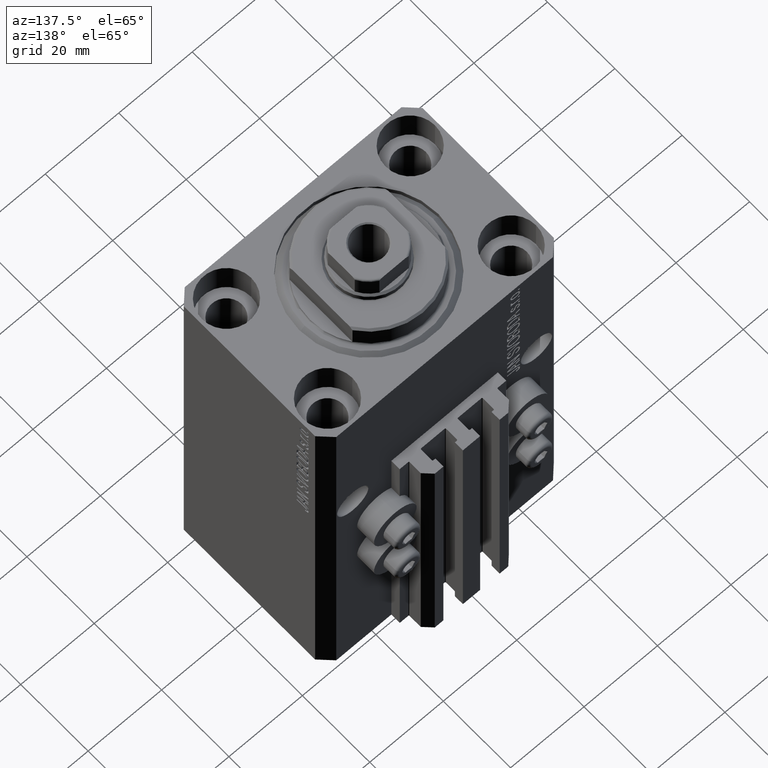
[diagram: clean part render]
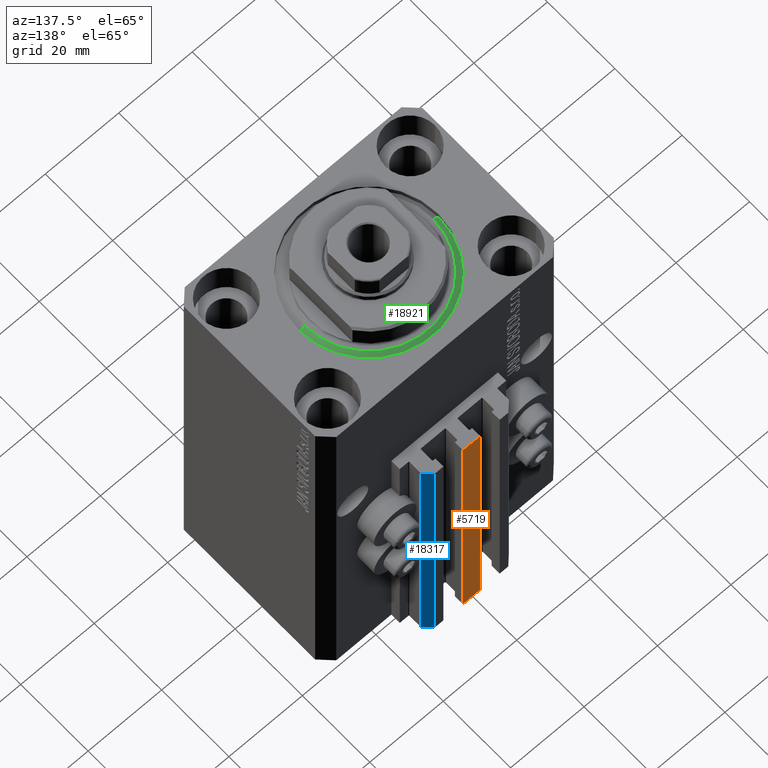
[diagram: same view with three faces highlighted in distinct colors, each labeled with its STEP entity id]
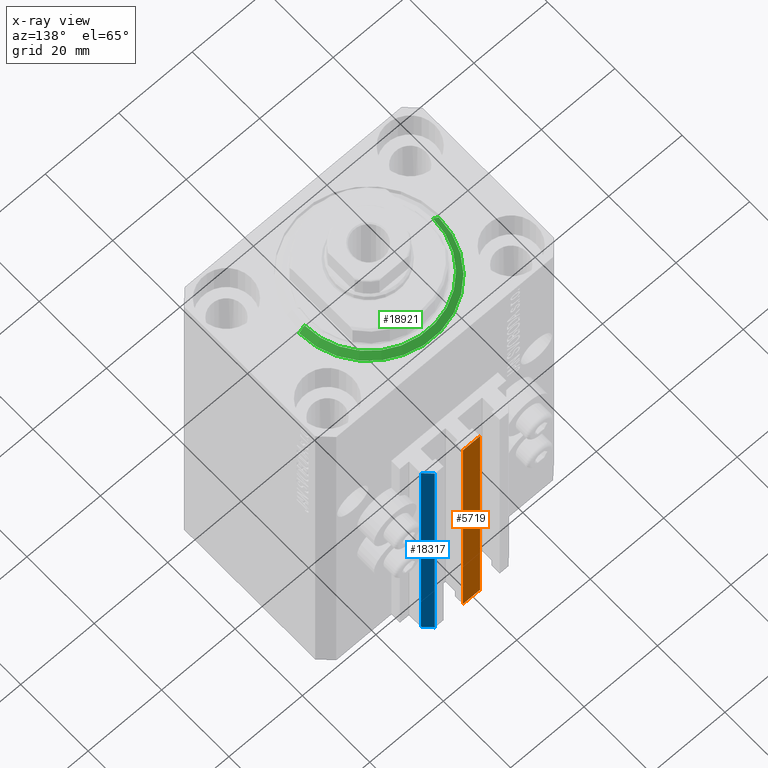
[diagram: x-ray of the same camera — body ghosted, the three highlighted faces saturated]
A machine part, auxiliary view with three faces highlighted in distinct colors.
The next image is the same camera in x-ray (body ghosted, the three faces saturated) — at least one of them is partly hidden behind the body in this view.
Their STEP definitions:

[orange] entity #5719 — the highlighted planar face has unit normal (0, -1, 0).
#109 = VERTEX_POINT ( 'NONE', #5108 ) ;
#119 = CARTESIAN_POINT ( 'NONE',  ( -2.350000000000003197, 30.49999999999949907, -33.00000000000000000 ) ) ;
#2055 = LINE ( 'NONE', #16613, #31984 ) ;
#2535 = VERTEX_POINT ( 'NONE', #16108 ) ;
#3369 = CARTESIAN_POINT ( 'NONE',  ( -2.350000000000003197, 30.49999999999949907, -106.0000000000000000 ) ) ;
#3571 = CARTESIAN_POINT ( 'NONE',  ( 2.349999999999999645, 30.49999999999949907, -106.0000000000000000 ) ) ;
#3645 = DIRECTION ( 'NONE',  ( 0.000000000000000000, -0.000000000000000000, -1.000000000000000000 ) ) ;
#5108 = CARTESIAN_POINT ( 'NONE',  ( 2.349999999999999645, 30.49999999999949907, -33.00000000000000000 ) ) ;
#5719 = ADVANCED_FACE ( 'NONE', ( #33229 ), #15085, .F. ) ;
#6614 = VECTOR ( 'NONE', #19065, 1000.000000000000000 ) ;
#6747 = ORIENTED_EDGE ( 'NONE', *, *, #46868, .F. ) ;
#10386 = AXIS2_PLACEMENT_3D ( 'NONE', #10804, #18205, #3645 ) ;
#10804 = CARTESIAN_POINT ( 'NONE',  ( -2.350000000000003197, 30.49999999999949907, -106.0000000000000000 ) ) ;
#12900 = ORIENTED_EDGE ( 'NONE', *, *, #16026, .F. ) ;
#13656 = LINE ( 'NONE', #3369, #22123 ) ;
#15085 = PLANE ( 'NONE',  #10386 ) ;
#16026 = EDGE_CURVE ( 'NONE', #32525, #2535, #2055, .T. ) ;
#16108 = CARTESIAN_POINT ( 'NONE',  ( 2.349999999999999645, 30.49999999999949907, -106.0000000000000000 ) ) ;
#16613 = CARTESIAN_POINT ( 'NONE',  ( -2.350000000000003197, 30.49999999999949907, -106.0000000000000000 ) ) ;
#17287 = VECTOR ( 'NONE', #39383, 1000.000000000000000 ) ;
#17935 = DIRECTION ( 'NONE',  ( 0.000000000000000000, 0.000000000000000000, 1.000000000000000000 ) ) ;
#18205 = DIRECTION ( 'NONE',  ( 0.000000000000000000, -1.000000000000000000, 0.000000000000000000 ) ) ;
#19065 = DIRECTION ( 'NONE',  ( 1.000000000000000000, 0.000000000000000000, 0.000000000000000000 ) ) ;
#19210 = EDGE_CURVE ( 'NONE', #32525, #20668, #13656, .T. ) ;
#19794 = CARTESIAN_POINT ( 'NONE',  ( -2.350000000000003197, 30.49999999999949907, -106.0000000000000000 ) ) ;
#20668 = VERTEX_POINT ( 'NONE', #119 ) ;
#21272 = ORIENTED_EDGE ( 'NONE', *, *, #46929, .T. ) ;
#22123 = VECTOR ( 'NONE', #17935, 1000.000000000000000 ) ;
#22657 = CARTESIAN_POINT ( 'NONE',  ( -2.350000000000003197, 30.49999999999949907, -33.00000000000000000 ) ) ;
#24420 = ORIENTED_EDGE ( 'NONE', *, *, #19210, .T. ) ;
#27828 = DIRECTION ( 'NONE',  ( 1.000000000000000000, 0.000000000000000000, 0.000000000000000000 ) ) ;
#30513 = LINE ( 'NONE', #22657, #6614 ) ;
#31984 = VECTOR ( 'NONE', #27828, 1000.000000000000000 ) ;
#32525 = VERTEX_POINT ( 'NONE', #19794 ) ;
#33229 = FACE_OUTER_BOUND ( 'NONE', #36332, .T. ) ;
#36332 = EDGE_LOOP ( 'NONE', ( #21272, #6747, #12900, #24420 ) ) ;
#36726 = LINE ( 'NONE', #3571, #17287 ) ;
#39383 = DIRECTION ( 'NONE',  ( 0.000000000000000000, 0.000000000000000000, 1.000000000000000000 ) ) ;
#46868 = EDGE_CURVE ( 'NONE', #2535, #109, #36726, .T. ) ;
#46929 = EDGE_CURVE ( 'NONE', #20668, #109, #30513, .T. ) ;

[blue] entity #18317 — the highlighted planar face has unit normal (0.7071, 0.7071, 0).
#937 = ORIENTED_EDGE ( 'NONE', *, *, #37518, .F. ) ;
#4008 = CARTESIAN_POINT ( 'NONE',  ( 12.00000000000000178, 28.49999999999950973, -106.0000000000000000 ) ) ;
#4242 = CARTESIAN_POINT ( 'NONE',  ( 12.00000000000000178, 28.49999999999950973, -33.00000000000000000 ) ) ;
#6245 = FACE_OUTER_BOUND ( 'NONE', #8613, .T. ) ;
#7391 = ORIENTED_EDGE ( 'NONE', *, *, #22787, .T. ) ;
#7748 = CARTESIAN_POINT ( 'NONE',  ( 9.999999999999994671, 30.49999999999949551, -33.00000000000000000 ) ) ;
#8053 = CARTESIAN_POINT ( 'NONE',  ( 12.00000000000000178, 28.49999999999950973, -106.0000000000000000 ) ) ;
#8613 = EDGE_LOOP ( 'NONE', ( #937, #9282, #24096, #7391 ) ) ;
#9001 = LINE ( 'NONE', #4242, #37697 ) ;
#9282 = ORIENTED_EDGE ( 'NONE', *, *, #18501, .F. ) ;
#9592 = CARTESIAN_POINT ( 'NONE',  ( 12.00000000000000178, 28.49999999999950973, -106.0000000000000000 ) ) ;
#9829 = DIRECTION ( 'NONE',  ( -0.7071067811865507924, 0.7071067811865441310, 0.000000000000000000 ) ) ;
#10991 = EDGE_CURVE ( 'NONE', #41358, #19546, #16162, .T. ) ;
#11424 = VERTEX_POINT ( 'NONE', #23643 ) ;
#12866 = CARTESIAN_POINT ( 'NONE',  ( 12.00000000000000178, 28.49999999999950973, -106.0000000000000000 ) ) ;
#12874 = CARTESIAN_POINT ( 'NONE',  ( 9.999999999999994671, 30.49999999999949551, -106.0000000000000000 ) ) ;
#16162 = LINE ( 'NONE', #8053, #46384 ) ;
#18317 = ADVANCED_FACE ( 'NONE', ( #6245 ), #35835, .T. ) ;
#18501 = EDGE_CURVE ( 'NONE', #41358, #11424, #42686, .T. ) ;
#19054 = VECTOR ( 'NONE', #42920, 1000.000000000000000 ) ;
#19546 = VERTEX_POINT ( 'NONE', #12874 ) ;
#19982 = DIRECTION ( 'NONE',  ( -0.7071067811865507924, 0.7071067811865441310, 0.000000000000000000 ) ) ;
#20342 = DIRECTION ( 'NONE',  ( 0.7071067811865442421, 0.7071067811865509034, -0.000000000000000000 ) ) ;
#20612 = AXIS2_PLACEMENT_3D ( 'NONE', #9592, #20342, #9829 ) ;
#20624 = VERTEX_POINT ( 'NONE', #7748 ) ;
#22787 = EDGE_CURVE ( 'NONE', #19546, #20624, #44035, .T. ) ;
#23643 = CARTESIAN_POINT ( 'NONE',  ( 12.00000000000000178, 28.49999999999950973, -33.00000000000000000 ) ) ;
#24096 = ORIENTED_EDGE ( 'NONE', *, *, #10991, .T. ) ;
#30493 = DIRECTION ( 'NONE',  ( -0.7071067811865507924, 0.7071067811865441310, 0.000000000000000000 ) ) ;
#35217 = VECTOR ( 'NONE', #43800, 1000.000000000000000 ) ;
#35835 = PLANE ( 'NONE',  #20612 ) ;
#35974 = CARTESIAN_POINT ( 'NONE',  ( 9.999999999999994671, 30.49999999999949551, -106.0000000000000000 ) ) ;
#37518 = EDGE_CURVE ( 'NONE', #11424, #20624, #9001, .T. ) ;
#37697 = VECTOR ( 'NONE', #30493, 1000.000000000000000 ) ;
#41358 = VERTEX_POINT ( 'NONE', #4008 ) ;
#42686 = LINE ( 'NONE', #12866, #19054 ) ;
#42920 = DIRECTION ( 'NONE',  ( 0.000000000000000000, 0.000000000000000000, 1.000000000000000000 ) ) ;
#43800 = DIRECTION ( 'NONE',  ( 0.000000000000000000, 0.000000000000000000, 1.000000000000000000 ) ) ;
#44035 = LINE ( 'NONE', #35974, #35217 ) ;
#46384 = VECTOR ( 'NONE', #19982, 1000.000000000000000 ) ;

[green] entity #18921 — the highlighted conical surface has half-angle 45 deg.
#65 = CARTESIAN_POINT ( 'NONE',  ( 17.49999999999999289, 0.000000000000000000, 0.000000000000000000 ) ) ;
#2484 = ORIENTED_EDGE ( 'NONE', *, *, #3688, .F. ) ;
#3572 = CARTESIAN_POINT ( 'NONE',  ( 0.000000000000000000, 0.000000000000000000, 0.000000000000000000 ) ) ;
#3688 = EDGE_CURVE ( 'NONE', #33867, #5923, #40773, .T. ) ;
#3800 = DIRECTION ( 'NONE',  ( -0.000000000000000000, -0.000000000000000000, -1.000000000000000000 ) ) ;
#4341 = CARTESIAN_POINT ( 'NONE',  ( 0.000000000000000000, 0.000000000000000000, 1.500000000000004885 ) ) ;
#5076 = LINE ( 'NONE', #40871, #16485 ) ;
#5617 = VECTOR ( 'NONE', #12881, 1000.000000000000000 ) ;
#5923 = VERTEX_POINT ( 'NONE', #45845 ) ;
#9871 = AXIS2_PLACEMENT_3D ( 'NONE', #3572, #3800, #26235 ) ;
#10872 = CARTESIAN_POINT ( 'NONE',  ( 0.000000000000000000, 0.000000000000000000, 1.500000000000004885 ) ) ;
#11446 = CONICAL_SURFACE ( 'NONE', #17572, 19.00000000000000000, 0.7853981633974492782 ) ;
#12881 = DIRECTION ( 'NONE',  ( 0.7071067811865483499, 0.000000000000000000, 0.7071067811865467956 ) ) ;
#14686 = FACE_OUTER_BOUND ( 'NONE', #14722, .T. ) ;
#14722 = EDGE_LOOP ( 'NONE', ( #35353, #36842, #2484, #30819 ) ) ;
#14918 = DIRECTION ( 'NONE',  ( -0.000000000000000000, -0.000000000000000000, 1.000000000000000000 ) ) ;
#15195 = CIRCLE ( 'NONE', #9871, 17.49999999999999289 ) ;
#16374 = EDGE_CURVE ( 'NONE', #37907, #39780, #15195, .T. ) ;
#16485 = VECTOR ( 'NONE', #19170, 1000.000000000000000 ) ;
#17572 = AXIS2_PLACEMENT_3D ( 'NONE', #10872, #14918, #25683 ) ;
#18508 = CARTESIAN_POINT ( 'NONE',  ( 19.00000000000000000, 2.326828918379970970E-15, 1.500000000000004885 ) ) ;
#18921 = ADVANCED_FACE ( 'NONE', ( #14686 ), #11446, .T. ) ;
#19170 = DIRECTION ( 'NONE',  ( -0.7071067811865483499, 8.659560562354943952E-17, 0.7071067811865467956 ) ) ;
#25683 = DIRECTION ( 'NONE',  ( 1.000000000000000000, 0.000000000000000000, 0.000000000000000000 ) ) ;
#26235 = DIRECTION ( 'NONE',  ( 1.000000000000000000, 0.000000000000000000, 0.000000000000000000 ) ) ;
#30819 = ORIENTED_EDGE ( 'NONE', *, *, #34962, .F. ) ;
#31517 = LINE ( 'NONE', #45565, #5617 ) ;
#31698 = AXIS2_PLACEMENT_3D ( 'NONE', #4341, #44659, #37274 ) ;
#33867 = VERTEX_POINT ( 'NONE', #18508 ) ;
#34962 = EDGE_CURVE ( 'NONE', #39780, #33867, #31517, .T. ) ;
#35353 = ORIENTED_EDGE ( 'NONE', *, *, #16374, .F. ) ;
#36842 = ORIENTED_EDGE ( 'NONE', *, *, #45592, .T. ) ;
#37274 = DIRECTION ( 'NONE',  ( 1.000000000000000000, 0.000000000000000000, 0.000000000000000000 ) ) ;
#37907 = VERTEX_POINT ( 'NONE', #42591 ) ;
#39780 = VERTEX_POINT ( 'NONE', #65 ) ;
#40773 = CIRCLE ( 'NONE', #31698, 19.00000000000000000 ) ;
#40871 = CARTESIAN_POINT ( 'NONE',  ( -19.00000000000000000, 2.326828918379970970E-15, 1.500000000000004885 ) ) ;
#42591 = CARTESIAN_POINT ( 'NONE',  ( -17.49999999999999289, 2.234980408443919215E-15, 0.000000000000000000 ) ) ;
#44659 = DIRECTION ( 'NONE',  ( -0.000000000000000000, -0.000000000000000000, 1.000000000000000000 ) ) ;
#45565 = CARTESIAN_POINT ( 'NONE',  ( 19.00000000000000000, 0.000000000000000000, 1.500000000000004885 ) ) ;
#45592 = EDGE_CURVE ( 'NONE', #37907, #5923, #5076, .T. ) ;
#45845 = CARTESIAN_POINT ( 'NONE',  ( -19.00000000000000000, 0.000000000000000000, 1.500000000000004885 ) ) ;